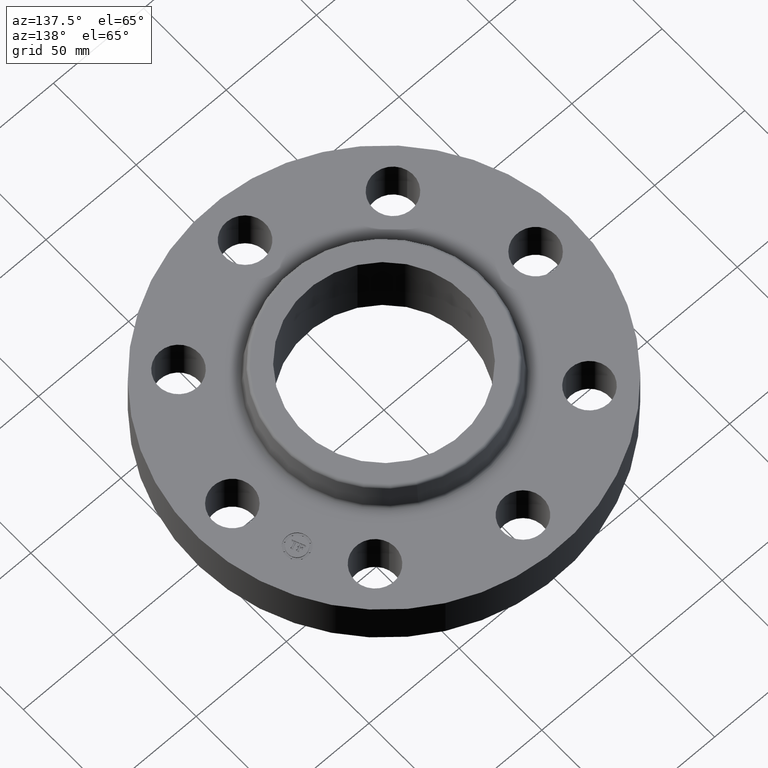
[diagram: clean part render]
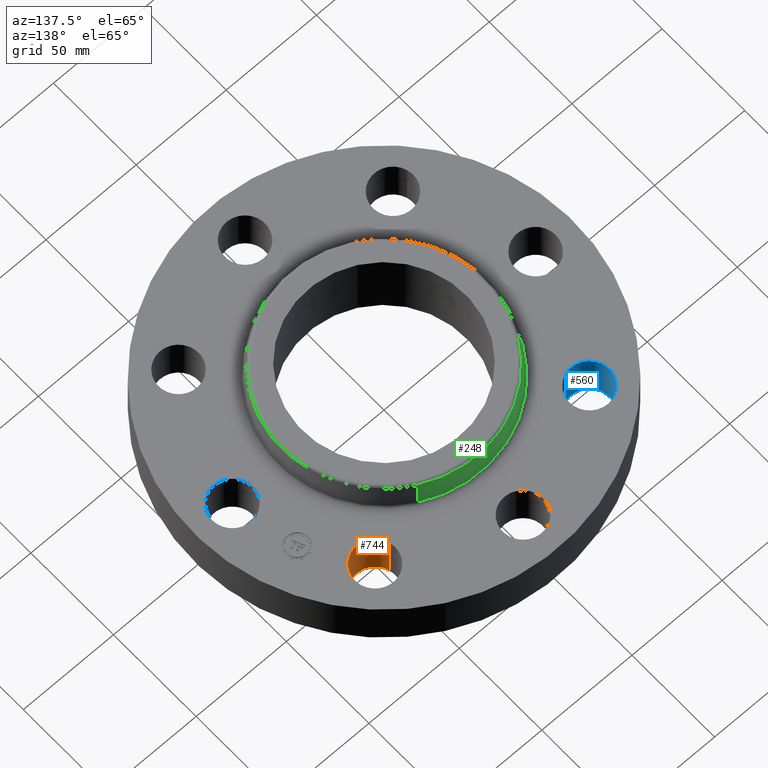
[diagram: same view with three faces highlighted in distinct colors, each labeled with its STEP entity id]
A machine part, auxiliary view with three faces highlighted in distinct colors.
Their STEP definitions:

[orange] entity #744 — the highlighted cylindrical surface (edge-blend (fillet) strip) has radius 11.176 mm, axis along (0, 0, -1).
#522=AXIS2_PLACEMENT_3D('Circle Axis2P3D',#520,#521,$) ;
#705=AXIS2_PLACEMENT_3D('Cylinder Axis2P3D',#702,#703,#704) ;
#735=AXIS2_PLACEMENT_3D('Circle Axis2P3D',#733,#734,$) ;
#515=CARTESIAN_POINT('Vertex',(1.91832160854,2.21664605203,0.)) ;
#517=CARTESIAN_POINT('Vertex',(2.76272528293,2.46440083944,0.)) ;
#520=CARTESIAN_POINT('Axis2P3D Location',(2.34052344574,2.34052344574,0.)) ;
#702=CARTESIAN_POINT('Axis2P3D Location',(2.34052344574,2.34052344574,1.05606299213)) ;
#707=CARTESIAN_POINT('Line Origine',(1.91832160854,2.21664605203,0.530000000002)) ;
#711=CARTESIAN_POINT('Vertex',(1.91832160854,2.21664605203,1.06)) ;
#714=CARTESIAN_POINT('Line Origine',(2.76272528293,2.46440083944,0.530000000002)) ;
#718=CARTESIAN_POINT('Vertex',(2.76272528293,2.46440083944,1.06)) ;
#733=CARTESIAN_POINT('Axis2P3D Location',(2.34052344574,2.34052344574,1.06)) ;
#521=DIRECTION('Axis2P3D Direction',(0.,0.,-0.0393700787402)) ;
#703=DIRECTION('Axis2P3D Direction',(0.,0.,-0.0393700787402)) ;
#704=DIRECTION('Axis2P3D XDirection',(0.0377775444876,0.0110842335096,0.)) ;
#708=DIRECTION('Vector Direction',(0.,0.,-0.0393700787402)) ;
#715=DIRECTION('Vector Direction',(0.,0.,-0.0393700787402)) ;
#734=DIRECTION('Axis2P3D Direction',(0.,0.,-0.0393700787402)) ;
#709=VECTOR('Line Direction',#708,0.0393700787402) ;
#716=VECTOR('Line Direction',#715,0.0393700787402) ;
#739=ORIENTED_EDGE('',*,*,#720,.F.) ;
#740=ORIENTED_EDGE('',*,*,#524,.T.) ;
#741=ORIENTED_EDGE('',*,*,#713,.T.) ;
#742=ORIENTED_EDGE('',*,*,#737,.F.) ;
#744=ADVANCED_FACE('PartBody',(#743),#706,.F.) ;
#523=CIRCLE('generated circle',#522,0.440000000002) ;
#736=CIRCLE('generated circle',#735,0.440000000002) ;
#706=CYLINDRICAL_SURFACE('generated cylinder',#705,0.440000000002) ;
#524=EDGE_CURVE('',#518,#516,#523,.T.) ;
#713=EDGE_CURVE('',#516,#712,#710,.F.) ;
#720=EDGE_CURVE('',#518,#719,#717,.F.) ;
#737=EDGE_CURVE('',#719,#712,#736,.T.) ;
#738=EDGE_LOOP('',(#739,#740,#741,#742)) ;
#743=FACE_OUTER_BOUND('',#738,.T.) ;
#710=LINE('Line',#707,#709) ;
#717=LINE('Line',#714,#716) ;
#516=VERTEX_POINT('',#515) ;
#518=VERTEX_POINT('',#517) ;
#712=VERTEX_POINT('',#711) ;
#719=VERTEX_POINT('',#718) ;

[blue] entity #560 — the highlighted cylindrical surface (edge-blend (fillet) strip) has radius 11.176 mm, axis along (0, 0, -1).
#477=AXIS2_PLACEMENT_3D('Circle Axis2P3D',#475,#476,$) ;
#533=AXIS2_PLACEMENT_3D('Cylinder Axis2P3D',#530,#531,#532) ;
#551=AXIS2_PLACEMENT_3D('Circle Axis2P3D',#549,#550,$) ;
#475=CARTESIAN_POINT('Axis2P3D Location',(-2.34052344574,2.34052344574,0.)) ;
#479=CARTESIAN_POINT('Vertex',(-2.21664605203,1.91832160854,0.)) ;
#481=CARTESIAN_POINT('Vertex',(-2.46440083944,2.76272528293,0.)) ;
#530=CARTESIAN_POINT('Axis2P3D Location',(-2.34052344574,2.34052344574,1.05606299213)) ;
#535=CARTESIAN_POINT('Line Origine',(-2.21664605203,1.91832160854,0.530000000002)) ;
#539=CARTESIAN_POINT('Vertex',(-2.21664605203,1.91832160854,1.06)) ;
#542=CARTESIAN_POINT('Line Origine',(-2.46440083944,2.76272528293,0.530000000002)) ;
#546=CARTESIAN_POINT('Vertex',(-2.46440083944,2.76272528293,1.06)) ;
#549=CARTESIAN_POINT('Axis2P3D Location',(-2.34052344574,2.34052344574,1.06)) ;
#476=DIRECTION('Axis2P3D Direction',(0.,0.,-0.0393700787402)) ;
#531=DIRECTION('Axis2P3D Direction',(0.,0.,-0.0393700787402)) ;
#532=DIRECTION('Axis2P3D XDirection',(-0.0110842335096,0.0377775444876,0.)) ;
#536=DIRECTION('Vector Direction',(0.,0.,-0.0393700787402)) ;
#543=DIRECTION('Vector Direction',(0.,0.,-0.0393700787402)) ;
#550=DIRECTION('Axis2P3D Direction',(0.,0.,-0.0393700787402)) ;
#537=VECTOR('Line Direction',#536,0.0393700787402) ;
#544=VECTOR('Line Direction',#543,0.0393700787402) ;
#555=ORIENTED_EDGE('',*,*,#541,.F.) ;
#556=ORIENTED_EDGE('',*,*,#483,.T.) ;
#557=ORIENTED_EDGE('',*,*,#548,.T.) ;
#558=ORIENTED_EDGE('',*,*,#553,.F.) ;
#560=ADVANCED_FACE('PartBody',(#559),#534,.F.) ;
#478=CIRCLE('generated circle',#477,0.440000000002) ;
#552=CIRCLE('generated circle',#551,0.440000000002) ;
#534=CYLINDRICAL_SURFACE('generated cylinder',#533,0.440000000002) ;
#483=EDGE_CURVE('',#480,#482,#478,.T.) ;
#541=EDGE_CURVE('',#480,#540,#538,.F.) ;
#548=EDGE_CURVE('',#482,#547,#545,.F.) ;
#553=EDGE_CURVE('',#540,#547,#552,.T.) ;
#554=EDGE_LOOP('',(#555,#556,#557,#558)) ;
#559=FACE_OUTER_BOUND('',#554,.T.) ;
#538=LINE('Line',#535,#537) ;
#545=LINE('Line',#542,#544) ;
#480=VERTEX_POINT('',#479) ;
#482=VERTEX_POINT('',#481) ;
#540=VERTEX_POINT('',#539) ;
#547=VERTEX_POINT('',#546) ;

[green] entity #248 — the highlighted conical surface has half-angle 10 deg.
#196=AXIS2_PLACEMENT_3D('Circle Axis2P3D',#194,#195,$) ;
#209=AXIS2_PLACEMENT_3D('Cone Axis2P3D',#206,#207,#208) ;
#239=AXIS2_PLACEMENT_3D('Circle Axis2P3D',#237,#238,$) ;
#167=CARTESIAN_POINT('Vertex',(1.10328162249,2.01954346356,1.10958110934)) ;
#174=CARTESIAN_POINT('Vertex',(-1.10328162249,-2.01954346356,1.10958110934)) ;
#194=CARTESIAN_POINT('Axis2P3D Location',(0.,0.,1.10958110934)) ;
#206=CARTESIAN_POINT('Axis2P3D Location',(0.,0.,1.58041889067)) ;
#211=CARTESIAN_POINT('Line Origine',(1.08338033174,1.98311439519,1.34500000001)) ;
#215=CARTESIAN_POINT('Vertex',(1.06347904098,1.94668532681,1.58041889067)) ;
#222=CARTESIAN_POINT('Vertex',(-1.06347904098,-1.94668532681,1.58041889067)) ;
#225=CARTESIAN_POINT('Line Origine',(-1.08338033174,-1.98311439519,1.34500000001)) ;
#237=CARTESIAN_POINT('Axis2P3D Location',(0.,0.,1.58041889067)) ;
#195=DIRECTION('Axis2P3D Direction',(0.,0.,-0.0393700787402)) ;
#207=DIRECTION('Axis2P3D Direction',(0.,0.,-0.0393700787402)) ;
#208=DIRECTION('Axis2P3D XDirection',(-0.0188750212049,-0.0345504945626,0.)) ;
#212=DIRECTION('Vector Direction',(0.00327761303565,0.00599963041829,-0.03877195878)) ;
#226=DIRECTION('Vector Direction',(-0.00327761303565,-0.00599963041829,-0.03877195878)) ;
#238=DIRECTION('Axis2P3D Direction',(0.,0.,-0.0393700787402)) ;
#213=VECTOR('Line Direction',#212,0.0393700787402) ;
#227=VECTOR('Line Direction',#226,0.0393700787402) ;
#243=ORIENTED_EDGE('',*,*,#198,.F.) ;
#244=ORIENTED_EDGE('',*,*,#229,.T.) ;
#245=ORIENTED_EDGE('',*,*,#241,.T.) ;
#246=ORIENTED_EDGE('',*,*,#217,.F.) ;
#248=ADVANCED_FACE('PartBody',(#247),#210,.T.) ;
#197=CIRCLE('generated circle',#196,2.3012575127) ;
#240=CIRCLE('generated circle',#239,2.21823610832) ;
#210=CONICAL_SURFACE('Cone',#209,2.21823610832,0.174532925199) ;
#198=EDGE_CURVE('',#175,#168,#197,.T.) ;
#217=EDGE_CURVE('',#168,#216,#214,.F.) ;
#229=EDGE_CURVE('',#175,#223,#228,.F.) ;
#241=EDGE_CURVE('',#223,#216,#240,.T.) ;
#242=EDGE_LOOP('',(#243,#244,#245,#246)) ;
#247=FACE_OUTER_BOUND('',#242,.T.) ;
#214=LINE('Line',#211,#213) ;
#228=LINE('Line',#225,#227) ;
#168=VERTEX_POINT('',#167) ;
#175=VERTEX_POINT('',#174) ;
#216=VERTEX_POINT('',#215) ;
#223=VERTEX_POINT('',#222) ;